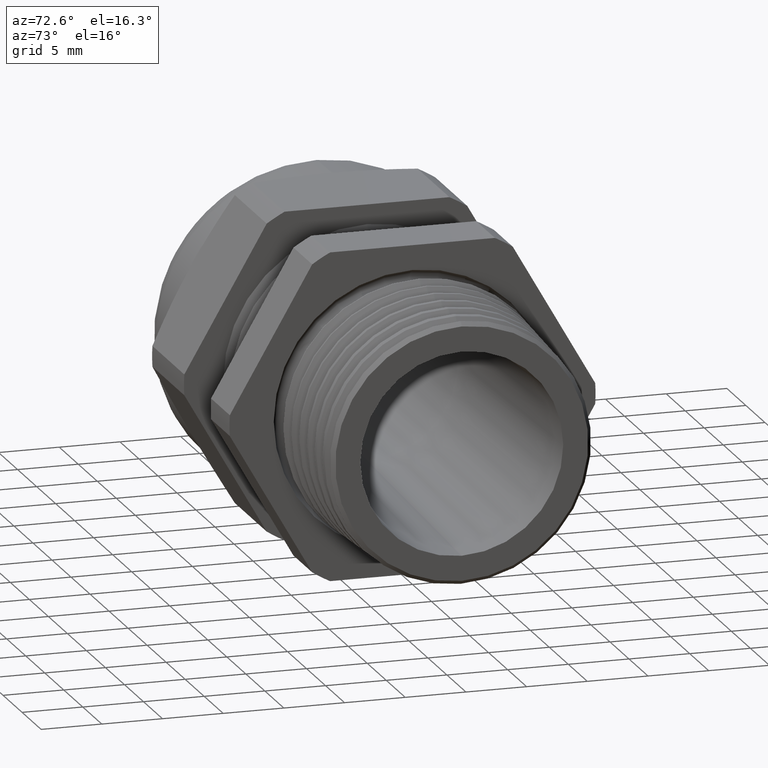
[diagram: clean part render]
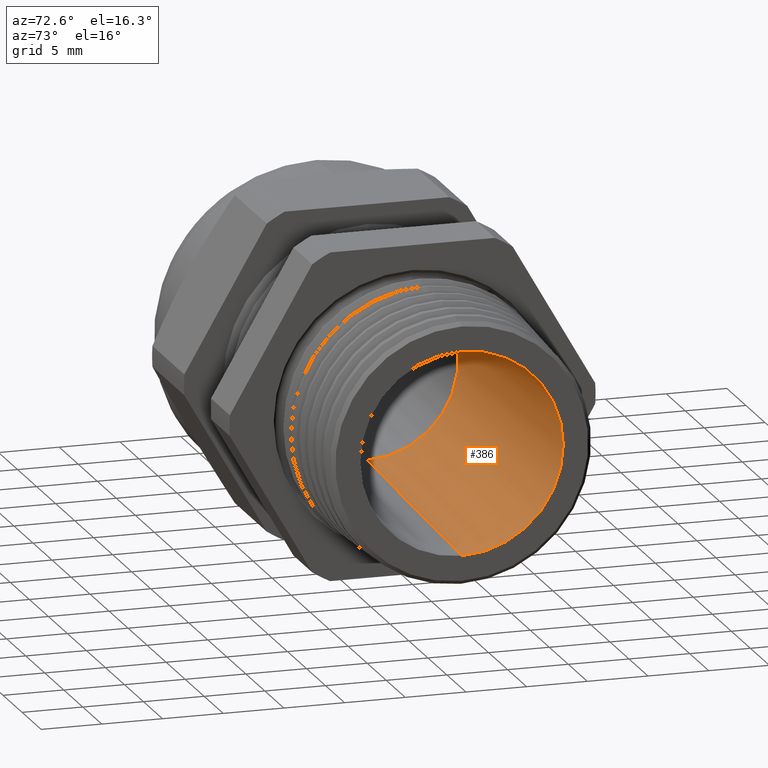
[diagram: same view with one face highlighted and labeled with its STEP entity id]
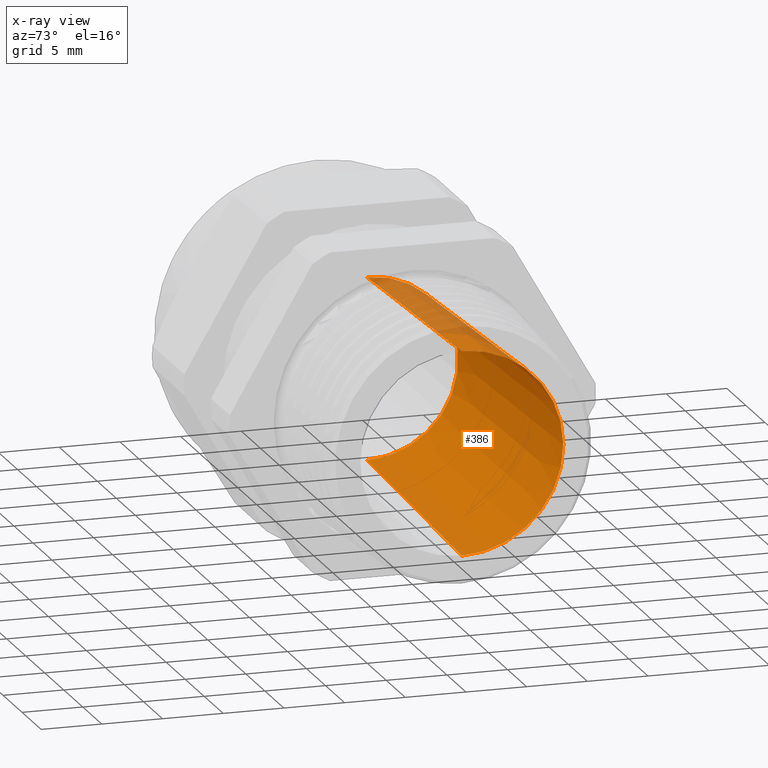
[diagram: x-ray of the same camera — body ghosted, the highlighted face saturated]
A machine part, auxiliary view. The second image highlights one B-rep face of the part: STEP entity #386.
The next image is the same camera in x-ray: the body ghosted, the highlighted face saturated — about 8% of this face is hidden behind the body in this view.
In plain terms, the highlighted conical surface has half-angle 2 deg.
Its self-contained STEP definition (entity closure, byte-faithful):
#366 = ORIENTED_EDGE ( 'NONE', *, *, #367, .F. ) ;
#367 = EDGE_CURVE ( 'NONE', #1119, #1117, #1931, .T. ) ;
#383 = EDGE_CURVE ( 'NONE', #1127, #1125, #1965, .T. ) ;
#386 = ADVANCED_FACE ( 'NONE', ( #1956 ), #1955, .F. ) ;
#387 = EDGE_LOOP ( 'NONE', ( #388, #389, #390, #366 ) ) ;
#388 = ORIENTED_EDGE ( 'NONE', *, *, #1115, .F. ) ;
#389 = ORIENTED_EDGE ( 'NONE', *, *, #383, .T. ) ;
#390 = ORIENTED_EDGE ( 'NONE', *, *, #1177, .T. ) ;
#1115 = EDGE_CURVE ( 'NONE', #1127, #1119, #3224, .T. ) ;
#1117 = VERTEX_POINT ( 'NONE', #3215 ) ;
#1119 = VERTEX_POINT ( 'NONE', #3214 ) ;
#1125 = VERTEX_POINT ( 'NONE', #3202 ) ;
#1127 = VERTEX_POINT ( 'NONE', #3201 ) ;
#1177 = EDGE_CURVE ( 'NONE', #1125, #1117, #3279, .T. ) ;
#1922 = DIRECTION ( 'NONE',  ( 0.0000000000000000000, 0.0000000000000000000, 1.000000000000000000 ) ) ;
#1923 = DIRECTION ( 'NONE',  ( -1.000000000000000000, 0.0000000000000000000, 0.0000000000000000000 ) ) ;
#1924 = AXIS2_PLACEMENT_3D ( 'NONE', #1932, #1923, #1922 ) ;
#1931 = CIRCLE ( 'NONE', #1924, 0.3292514547431566500 ) ;
#1932 = CARTESIAN_POINT ( 'NONE',  ( 0.5100000000000000100, 0.0000000000000000000, 0.0000000000000000000 ) ) ;
#1950 = DIRECTION ( 'NONE',  ( 0.0000000000000000000, 0.0000000000000000000, -1.000000000000000000 ) ) ;
#1951 = DIRECTION ( 'NONE',  ( 1.000000000000000000, 0.0000000000000000000, 0.0000000000000000000 ) ) ;
#1952 = CARTESIAN_POINT ( 'NONE',  ( -0.4708333333333334900, 0.0000000000000000000, 0.0000000000000000000 ) ) ;
#1953 = AXIS2_PLACEMENT_3D ( 'NONE', #1952, #1951, #1950 ) ;
#1955 = CONICAL_SURFACE ( 'NONE', #1953, 0.2949999999999999800, 0.03490658503988732600 ) ;
#1956 = FACE_OUTER_BOUND ( 'NONE', #387, .T. ) ;
#1957 = DIRECTION ( 'NONE',  ( 0.0000000000000000000, 0.0000000000000000000, 1.000000000000000000 ) ) ;
#1958 = DIRECTION ( 'NONE',  ( -1.000000000000000000, 0.0000000000000000000, 0.0000000000000000000 ) ) ;
#1959 = CARTESIAN_POINT ( 'NONE',  ( -0.4708333333333334900, 0.0000000000000000000, 0.0000000000000000000 ) ) ;
#1960 = AXIS2_PLACEMENT_3D ( 'NONE', #1959, #1958, #1957 ) ;
#1965 = CIRCLE ( 'NONE', #1960, 0.2949999999999999800 ) ;
#3201 = CARTESIAN_POINT ( 'NONE',  ( -0.4708333333333334900, 0.0000000000000000000, 0.2949999999999999800 ) ) ;
#3202 = CARTESIAN_POINT ( 'NONE',  ( -0.4708333333333334900, 3.612708057484692000E-017, -0.2949999999999999800 ) ) ;
#3214 = CARTESIAN_POINT ( 'NONE',  ( 0.5100000000000000100, 4.032167401658163500E-017, 0.3292514547431566500 ) ) ;
#3215 = CARTESIAN_POINT ( 'NONE',  ( 0.5100000000000000100, 0.0000000000000000000, -0.3292514547431566500 ) ) ;
#3221 = DIRECTION ( 'NONE',  ( 0.9993908270190957600, 4.273955692857231900E-018, 0.03489949670250170500 ) ) ;
#3222 = VECTOR ( 'NONE', #3221, 39.37007874015748900 ) ;
#3223 = CARTESIAN_POINT ( 'NONE',  ( -0.4708333333333334900, 3.612708057484692000E-017, 0.2949999999999999800 ) ) ;
#3224 = LINE ( 'NONE', #3223, #3222 ) ;
#3276 = DIRECTION ( 'NONE',  ( 0.9993908270190957600, 0.0000000000000000000, -0.03489949670250170500 ) ) ;
#3277 = VECTOR ( 'NONE', #3276, 39.37007874015748900 ) ;
#3278 = CARTESIAN_POINT ( 'NONE',  ( -0.4708333333333334900, 0.0000000000000000000, -0.2949999999999999800 ) ) ;
#3279 = LINE ( 'NONE', #3278, #3277 ) ;